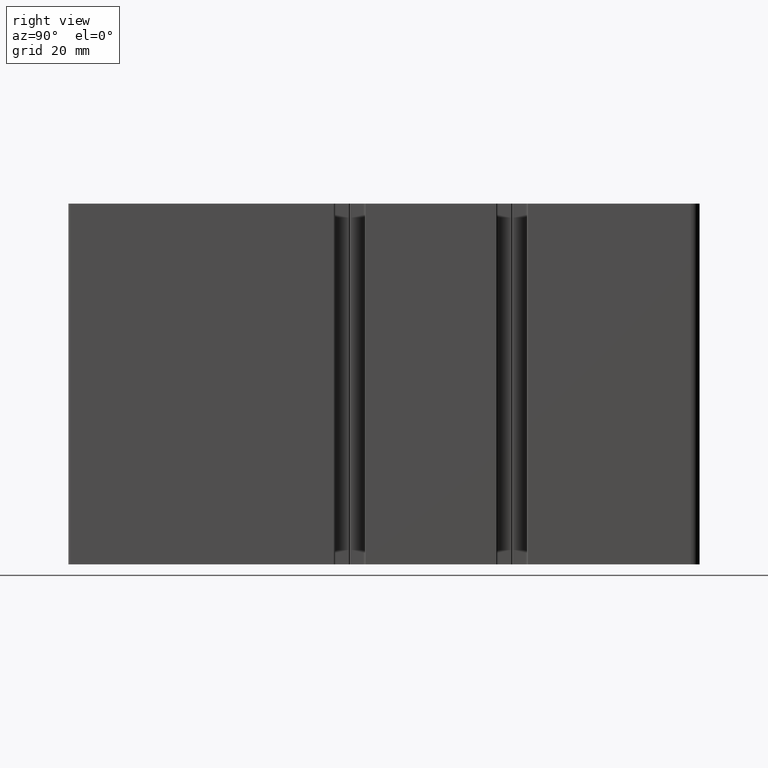
[diagram: clean part render]
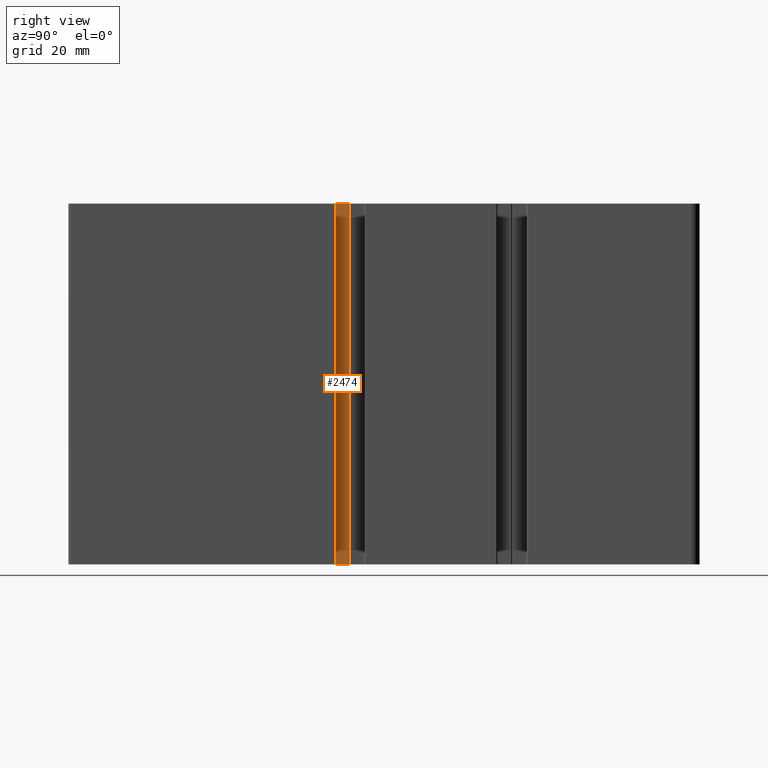
[diagram: same view with one face highlighted and labeled with its STEP entity id]
A machine part, right view. The second image highlights one B-rep face of the part: STEP entity #2474.
In plain terms, the highlighted planar face has unit normal (1, 0, 0).
Its self-contained STEP definition (entity closure, byte-faithful):
#278=FACE_OUTER_BOUND('',#403,.T.);
#403=EDGE_LOOP('',(#1968,#1969,#1970,#1971));
#644=LINE('',#4071,#905);
#645=LINE('',#4074,#906);
#646=LINE('',#4076,#907);
#647=LINE('',#4077,#908);
#905=VECTOR('',#3326,100.);
#906=VECTOR('',#3329,3.60000000000015);
#907=VECTOR('',#3330,3.60000000000015);
#908=VECTOR('',#3331,100.);
#1151=VERTEX_POINT('',#4067);
#1152=VERTEX_POINT('',#4069);
#1153=VERTEX_POINT('',#4073);
#1154=VERTEX_POINT('',#4075);
#1498=EDGE_CURVE('',#1151,#1152,#644,.T.);
#1499=EDGE_CURVE('',#1151,#1153,#645,.T.);
#1500=EDGE_CURVE('',#1154,#1152,#646,.T.);
#1501=EDGE_CURVE('',#1153,#1154,#647,.T.);
#1968=ORIENTED_EDGE('',*,*,#1499,.F.);
#1969=ORIENTED_EDGE('',*,*,#1498,.T.);
#1970=ORIENTED_EDGE('',*,*,#1500,.F.);
#1971=ORIENTED_EDGE('',*,*,#1501,.F.);
#2360=PLANE('',#2687);
#2474=ADVANCED_FACE('',(#278),#2360,.T.);
#2687=AXIS2_PLACEMENT_3D('',#4072,#3327,#3328);
#3326=DIRECTION('',(0.,0.,1.));
#3327=DIRECTION('center_axis',(1.,0.,0.));
#3328=DIRECTION('ref_axis',(0.,1.,0.));
#3329=DIRECTION('',(0.,-1.,0.));
#3330=DIRECTION('',(0.,1.,0.));
#3331=DIRECTION('',(0.,0.,1.));
#4067=CARTESIAN_POINT('',(-12.3000000000001,-22.7000000000001,0.));
#4069=CARTESIAN_POINT('',(-12.3000000000001,-22.7000000000001,100.));
#4071=CARTESIAN_POINT('',(-12.3000000000001,-22.7000000000001,0.));
#4072=CARTESIAN_POINT('Origin',(-12.3000000000001,-26.3000000000003,0.));
#4073=CARTESIAN_POINT('',(-12.3000000000001,-26.3000000000003,0.));
#4074=CARTESIAN_POINT('',(-12.3000000000001,-22.7000000000001,0.));
#4075=CARTESIAN_POINT('',(-12.3000000000001,-26.3000000000003,100.));
#4076=CARTESIAN_POINT('',(-12.3000000000001,-22.7000000000001,100.));
#4077=CARTESIAN_POINT('',(-12.3000000000001,-26.3000000000003,0.));